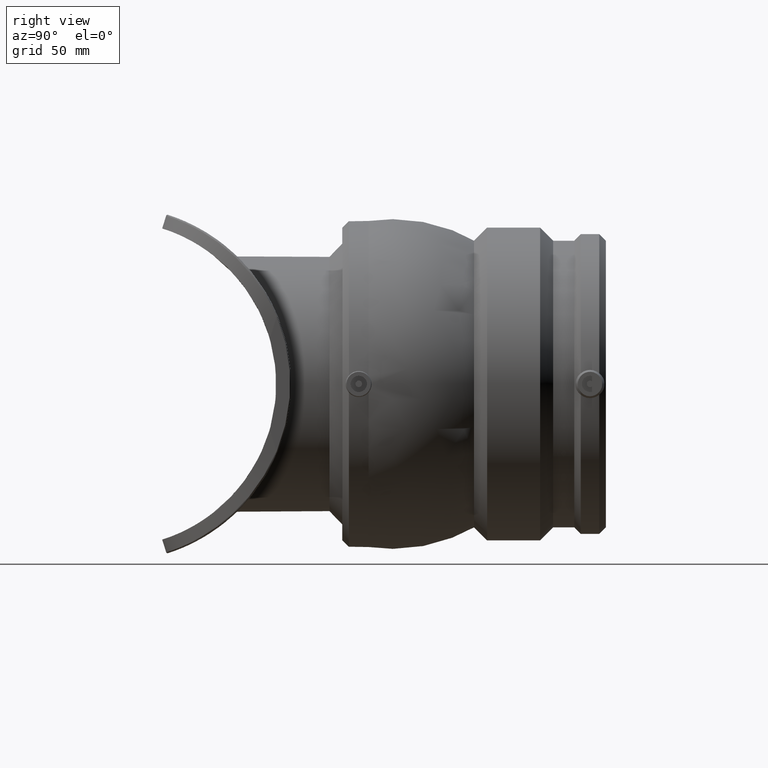
[diagram: clean part render]
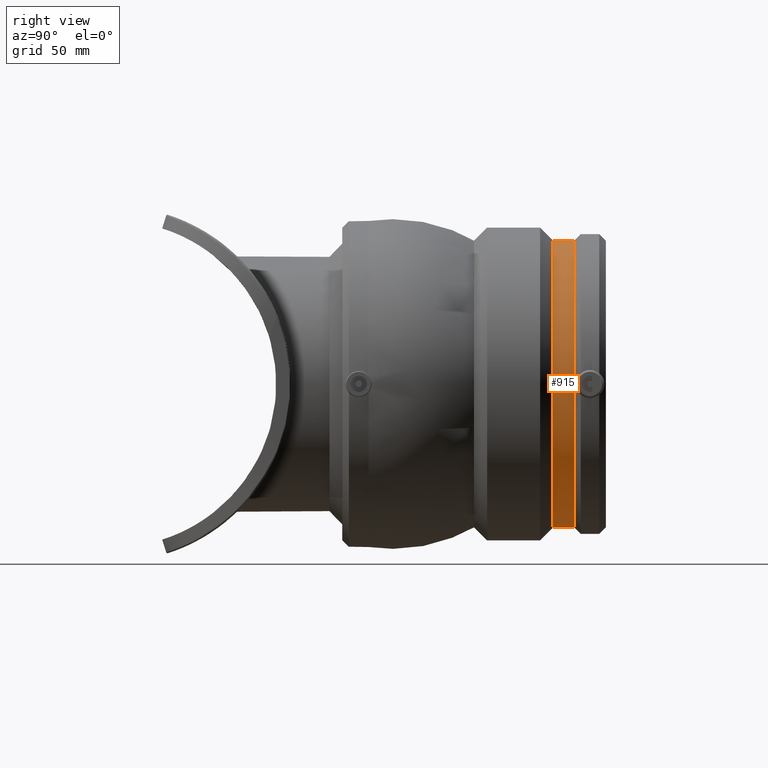
[diagram: same view with one face highlighted and labeled with its STEP entity id]
A machine part, right view. The second image highlights one B-rep face of the part: STEP entity #915.
In plain terms, the highlighted cylindrical surface (bore or boss wall) has radius 88 mm, axis along (0, 1, 0).
Its self-contained STEP definition (entity closure, byte-faithful):
#159=FACE_BOUND('',#317,.T.);
#177=CYLINDRICAL_SURFACE('',#1013,88.);
#222=FACE_OUTER_BOUND('',#316,.T.);
#316=EDGE_LOOP('',(#693));
#317=EDGE_LOOP('',(#694));
#390=CIRCLE('',#1012,88.);
#391=CIRCLE('',#1014,88.);
#454=VERTEX_POINT('',#1663);
#455=VERTEX_POINT('',#1666);
#542=EDGE_CURVE('',#454,#454,#390,.T.);
#543=EDGE_CURVE('',#455,#455,#391,.T.);
#693=ORIENTED_EDGE('',*,*,#543,.F.);
#694=ORIENTED_EDGE('',*,*,#542,.T.);
#915=ADVANCED_FACE('',(#222,#159),#177,.T.);
#1012=AXIS2_PLACEMENT_3D('',#1664,#1185,#1186);
#1013=AXIS2_PLACEMENT_3D('',#1665,#1187,#1188);
#1014=AXIS2_PLACEMENT_3D('',#1667,#1189,#1190);
#1185=DIRECTION('center_axis',(0.,1.,0.));
#1186=DIRECTION('ref_axis',(1.,0.,0.));
#1187=DIRECTION('center_axis',(0.,1.,0.));
#1188=DIRECTION('ref_axis',(-1.,0.,0.));
#1189=DIRECTION('center_axis',(0.,1.,0.));
#1190=DIRECTION('ref_axis',(1.,0.,0.));
#1663=CARTESIAN_POINT('',(-88.,129.28,0.));
#1664=CARTESIAN_POINT('Origin',(0.,129.28,0.));
#1665=CARTESIAN_POINT('Origin',(0.,135.744,0.));
#1666=CARTESIAN_POINT('',(-88.,142.208,0.));
#1667=CARTESIAN_POINT('Origin',(0.,142.208,0.));